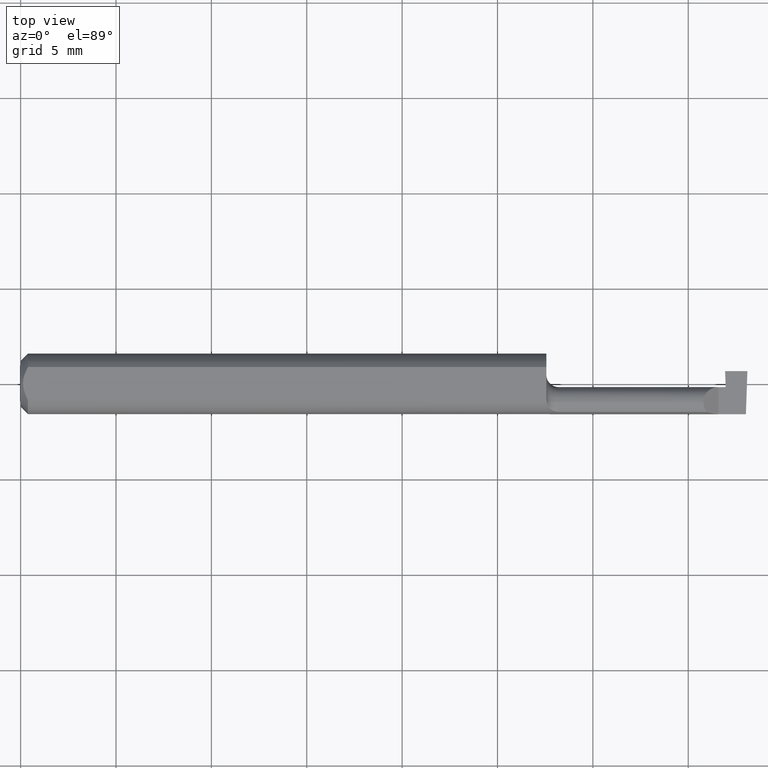
[diagram: clean part render]
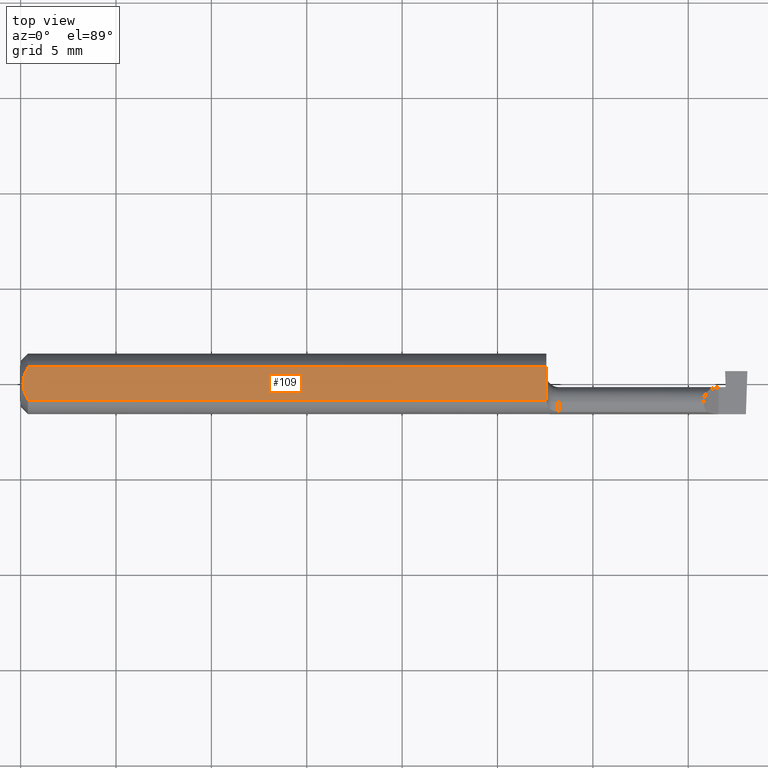
[diagram: same view with one face highlighted and labeled with its STEP entity id]
A machine part, top view. The second image highlights one B-rep face of the part: STEP entity #109.
In plain terms, the highlighted planar face has unit normal (0, -0, 1).
Its self-contained STEP definition (entity closure, byte-faithful):
#5 = VERTEX_POINT ( 'NONE', #678 ) ;
#11 = DIRECTION ( 'NONE',  ( -1.000000000000000000, -0.000000000000000000, -0.000000000000000000 ) ) ;
#13 = ORIENTED_EDGE ( 'NONE', *, *, #271, .T. ) ;
#14 = CARTESIAN_POINT ( 'NONE',  ( 0.004999999999989314207, 8.235553591830799656E-16, 0.05250000000000000500 ) ) ;
#36 = CARTESIAN_POINT ( 'NONE',  ( 0.004999999999989314207, 8.235553591830799656E-16, 0.05250000000000000500 ) ) ;
#46 = LINE ( 'NONE', #713, #560 ) ;
#56 = CARTESIAN_POINT ( 'NONE',  ( 1.085049859856598298, -0.02331211554534654354, 0.05250000000000001193 ) ) ;
#98 = CARTESIAN_POINT ( 'NONE',  ( 1.084999999999999964, -0.02066217183493446533, 0.05250000000000000500 ) ) ;
#109 = ADVANCED_FACE ( 'NONE', ( #356 ), #474, .T. ) ;
#142 = CARTESIAN_POINT ( 'NONE',  ( 0.006056885874551373727, -0.01188654981375985957, 0.05250000000000001193 ) ) ;
#152 = CARTESIAN_POINT ( 'NONE',  ( 0.01216049014016022493, -0.02867836381244416935, 0.05250000000000000500 ) ) ;
#158 = CARTESIAN_POINT ( 'NONE',  ( 0.009676924495017957123, -0.02328413057436891712, 0.05250000000000001193 ) ) ;
#163 = B_SPLINE_CURVE_WITH_KNOTS ( 'NONE', 3,
 ( #519, #689, #676, #301, #354, #14 ),
 .UNSPECIFIED., .F., .F.,
 ( 4, 2, 4 ),
 ( 0.0009797930073890425730, 0.001428868798926340253, 0.001877944590463637717 ),
 .UNSPECIFIED. ) ;
#177 = VERTEX_POINT ( 'NONE', #700 ) ;
#185 = DIRECTION ( 'NONE',  ( -0.000000000000000000, 1.000000000000000000, 0.000000000000000000 ) ) ;
#189 = VERTEX_POINT ( 'NONE', #213 ) ;
#198 = CARTESIAN_POINT ( 'NONE',  ( 1.500000000000000222, -0.06250000000000001388, 0.05250000000000000500 ) ) ;
#202 = ORIENTED_EDGE ( 'NONE', *, *, #552, .T. ) ;
#213 = CARTESIAN_POINT ( 'NONE',  ( 1.084999999999999964, -0.01801282473009493609, 0.05250000000000000500 ) ) ;
#233 = CARTESIAN_POINT ( 'NONE',  ( 0.000000000000000000, -0.03391164991562636150, 0.05249999999999998418 ) ) ;
#241 = CARTESIAN_POINT ( 'NONE',  ( 0.01499999999999999944, -0.03391164991562636150, 0.05249999999999998418 ) ) ;
#245 = CARTESIAN_POINT ( 'NONE',  ( 1.084999999999999964, -0.06250000000000001388, 0.05250000000000000500 ) ) ;
#271 = EDGE_CURVE ( 'NONE', #556, #452, #330, .T. ) ;
#279 = VERTEX_POINT ( 'NONE', #705 ) ;
#289 = DIRECTION ( 'NONE',  ( 1.000000000000000000, 0.000000000000000000, 0.000000000000000000 ) ) ;
#301 = CARTESIAN_POINT ( 'NONE',  ( 0.006063917085846147297, 0.01190810954070469288, 0.05250000000000001887 ) ) ;
#330 = B_SPLINE_CURVE_WITH_KNOTS ( 'NONE', 3,
 ( #36, #651, #142, #158, #152, #376 ),
 .UNSPECIFIED., .F., .F.,
 ( 4, 2, 4 ),
 ( 0.001877944590463637717, 0.002327931134338583757, 0.002777917678213529581 ),
 .UNSPECIFIED. ) ;
#354 = CARTESIAN_POINT ( 'NONE',  ( 0.004999999999999040802, 0.005952453510029875015, 0.05249999999999999806 ) ) ;
#356 = FACE_OUTER_BOUND ( 'NONE', #370, .T. ) ;
#370 = EDGE_LOOP ( 'NONE', ( #202, #564, #671, #650, #386, #13 ) ) ;
#376 = CARTESIAN_POINT ( 'NONE',  ( 0.01499999999999999944, -0.03391164991562636150, 0.05249999999999998418 ) ) ;
#385 = VECTOR ( 'NONE', #185, 39.37007874015748143 ) ;
#386 = ORIENTED_EDGE ( 'NONE', *, *, #447, .T. ) ;
#410 = CARTESIAN_POINT ( 'NONE',  ( 1.085229202404327520, -0.03391164991478706064, 0.05250000000000000500 ) ) ;
#447 = EDGE_CURVE ( 'NONE', #279, #556, #163, .T. ) ;
#452 = VERTEX_POINT ( 'NONE', #241 ) ;
#465 = CARTESIAN_POINT ( 'NONE',  ( 1.085152529077514805, -0.02861203825894658229, 0.05250000000000001193 ) ) ;
#474 = PLANE ( 'NONE',  #643 ) ;
#496 = EDGE_CURVE ( 'NONE', #189, #5, #509, .T. ) ;
#500 = EDGE_CURVE ( 'NONE', #177, #189, #616, .T. ) ;
#509 = LINE ( 'NONE', #245, #385 ) ;
#519 = CARTESIAN_POINT ( 'NONE',  ( 0.01499999999999999771, 0.03391164991562633374, 0.05250000000000000500 ) ) ;
#524 = DIRECTION ( 'NONE',  ( 1.000000000000000000, 0.000000000000000000, -0.000000000000000000 ) ) ;
#543 = EDGE_CURVE ( 'NONE', #5, #279, #46, .T. ) ;
#552 = EDGE_CURVE ( 'NONE', #452, #177, #573, .T. ) ;
#556 = VERTEX_POINT ( 'NONE', #623 ) ;
#560 = VECTOR ( 'NONE', #11, 39.37007874015748143 ) ;
#562 = VECTOR ( 'NONE', #289, 39.37007874015748143 ) ;
#564 = ORIENTED_EDGE ( 'NONE', *, *, #500, .T. ) ;
#572 = CARTESIAN_POINT ( 'NONE',  ( 1.085204566557042893, -0.03126200802603161522, 0.05250000000000000500 ) ) ;
#573 = LINE ( 'NONE', #233, #562 ) ;
#574 = DIRECTION ( 'NONE',  ( 0.000000000000000000, -0.000000000000000000, 1.000000000000000000 ) ) ;
#616 = B_SPLINE_CURVE_WITH_KNOTS ( 'NONE', 3,
 ( #410, #572, #465, #56, #98, #656 ),
 .UNSPECIFIED., .F., .F.,
 ( 4, 2, 4 ),
 ( 0.006720649285671062741, 0.006920528095095556873, 0.007120406904520050137 ),
 .UNSPECIFIED. ) ;
#623 = CARTESIAN_POINT ( 'NONE',  ( 0.004999999999989314207, 8.235553591830799656E-16, 0.05250000000000000500 ) ) ;
#643 = AXIS2_PLACEMENT_3D ( 'NONE', #198, #574, #524 ) ;
#650 = ORIENTED_EDGE ( 'NONE', *, *, #543, .T. ) ;
#651 = CARTESIAN_POINT ( 'NONE',  ( 0.004999999999998634009, -0.005964525438754507587, 0.05250000000000000500 ) ) ;
#656 = CARTESIAN_POINT ( 'NONE',  ( 1.084999999999999964, -0.01801282473009493609, 0.05250000000000000500 ) ) ;
#671 = ORIENTED_EDGE ( 'NONE', *, *, #496, .T. ) ;
#676 = CARTESIAN_POINT ( 'NONE',  ( 0.009668628632509970039, 0.02325858892916567860, 0.05250000000000001193 ) ) ;
#678 = CARTESIAN_POINT ( 'NONE',  ( 1.084999999999999964, 0.03391164991562636150, 0.05250000000000000500 ) ) ;
#689 = CARTESIAN_POINT ( 'NONE',  ( 0.01218419045468773464, 0.02872204407162096823, 0.05250000000000001193 ) ) ;
#700 = CARTESIAN_POINT ( 'NONE',  ( 1.085229202404327520, -0.03391164991478706064, 0.05250000000000000500 ) ) ;
#705 = CARTESIAN_POINT ( 'NONE',  ( 0.01499999999999999771, 0.03391164991562633374, 0.05250000000000000500 ) ) ;
#713 = CARTESIAN_POINT ( 'NONE',  ( 0.000000000000000000, 0.03391164991562636150, 0.05249999999999998418 ) ) ;